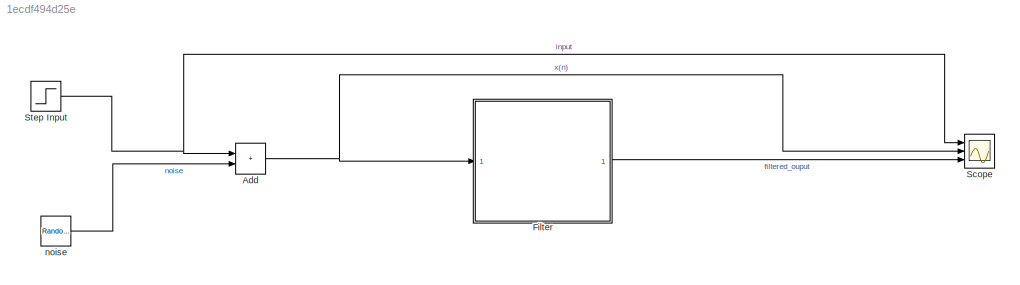
MODEL slx_1ecdf494d25e
KIND model
CONFIG AbsTol = auto
CONFIG EnableMultiTasking = off
CONFIG FixedStep = auto
CONFIG MaxStep = auto
CONFIG MinStep = auto
CONFIG RelTol = 1e-3
CONFIG SampleTimeConstraint = Unconstrained
CONFIG SolverName = VariableStepAuto
CONFIG StartTime = 0.0
CONFIG StopTime = 10.0
BLOCK [Sum] Add
  IconShape = rectangular
  Ports = [2, 1]
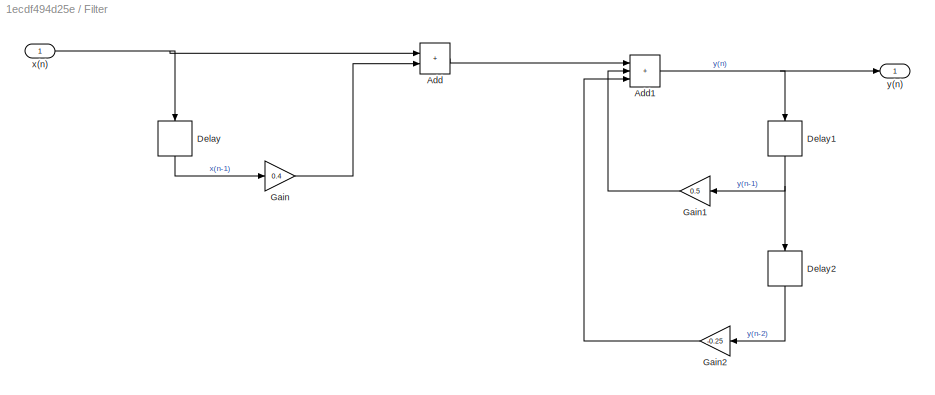
BLOCK [SubSystem] Filter
  Ports = [1, 1]
  RequestExecContextInheritance = off
BLOCK [Sum] Filter/Add
  IconShape = rectangular
  Ports = [2, 1]
BLOCK [Sum] Filter/Add1
  IconShape = rectangular
  Inputs = +++
  Ports = [3, 1]
BLOCK [Delay] Filter/Delay
  DelayLength = 1
  InputPortMap = u0
  NameLocation = left
  Ports = [1, 1]
BLOCK [Delay] Filter/Delay1
  DelayLength = 1
  InputPortMap = u0
  NameLocation = left
  Ports = [1, 1]
BLOCK [Delay] Filter/Delay2
  DelayLength = 1
  InputPortMap = u0
  NameLocation = left
  Ports = [1, 1]
BLOCK [Gain] Filter/Gain
  Gain = 0.4
BLOCK [Gain] Filter/Gain1
  Gain = 0.5
BLOCK [Gain] Filter/Gain2
  Gain = -0.25
BLOCK [Inport] Filter/x(n)
BLOCK [Outport] Filter/y(n)
BLOCK [Scope] Scope
  Floating = off
  NumInputPorts = 3
  Ports = [3]
  ScopeSpecificationString = Simulink.scopes.TimeScopeBlockCfg('CurrentConfiguration', extmgr.ConfigurationSet(extmgr.Configuration('Core','General UI',true),extmgr.Configuration('Core','Source UI',true),extmgr.Configuration('Sources','WiredSimulink',true),extmgr.Configuration('Visuals','Time Domain',true,'SerializedDisplays',{struct('MinYLimReal','-2.27411','MaxYLimReal','13.50191','YLabelReal','','MinYLimMag','0.00000','Max...<+2738ch>
BLOCK [Step] Step Input
  After = 5
  SampleTime = 0
BLOCK [RandomNumber] noise
  SampleTime = 0.1
NET Add:1 -> Filter:1, Scope:2
NET Filter/Add1:1 -> Filter/Delay1:1, Filter/y(n):1
LINE Filter/Add:1 -> Filter/Add1:1
NET Filter/Delay1:1 -> Filter/Delay2:1, Filter/Gain1:1
LINE Filter/Delay2:1 -> Filter/Gain2:1
LINE Filter/Delay:1 -> Filter/Gain:1
LINE Filter/Gain1:1 -> Filter/Add1:2
LINE Filter/Gain2:1 -> Filter/Add1:3
LINE Filter/Gain:1 -> Filter/Add:2
NET Filter/x(n):1 -> Filter/Add:1, Filter/Delay:1
LINE Filter:1 -> Scope:3
NET Step Input:1 -> Add:1, Scope:1
LINE noise:1 -> Add:2
note: NET lines group one-source signal fan-out (src -> all destinations, sorted); 1:1 wires keep LINE
